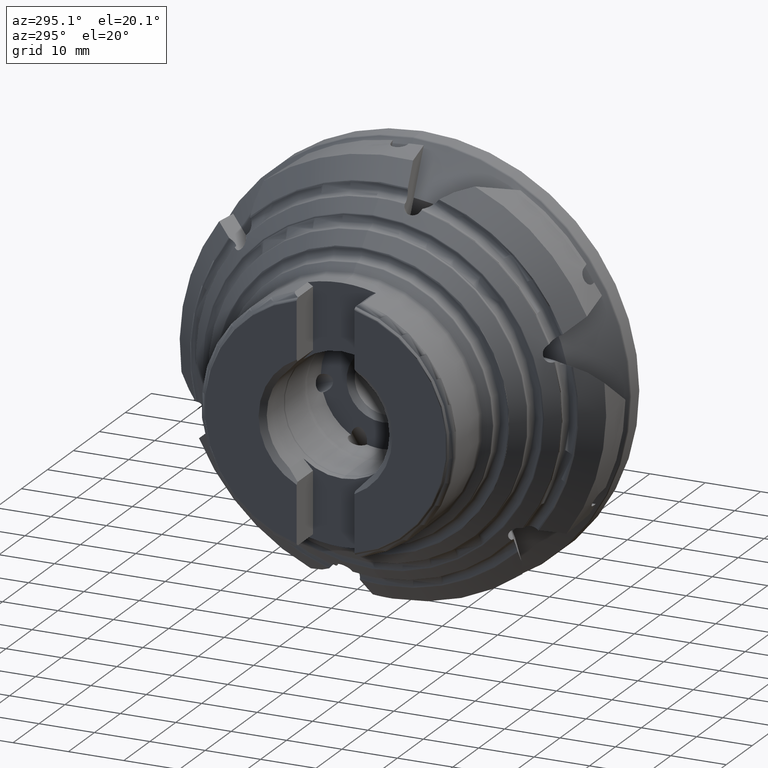
[diagram: clean part render]
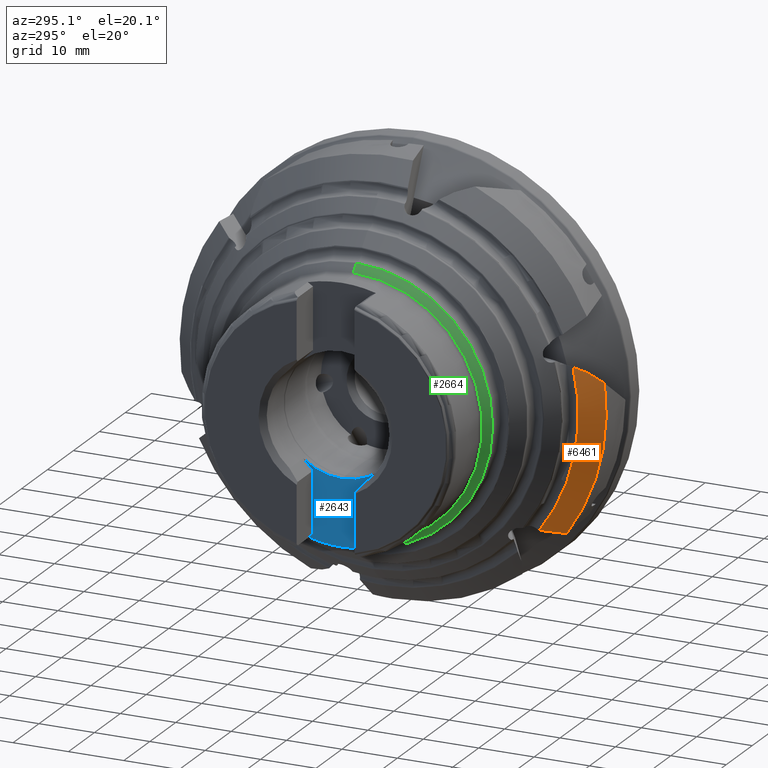
[diagram: same view with three faces highlighted in distinct colors, each labeled with its STEP entity id]
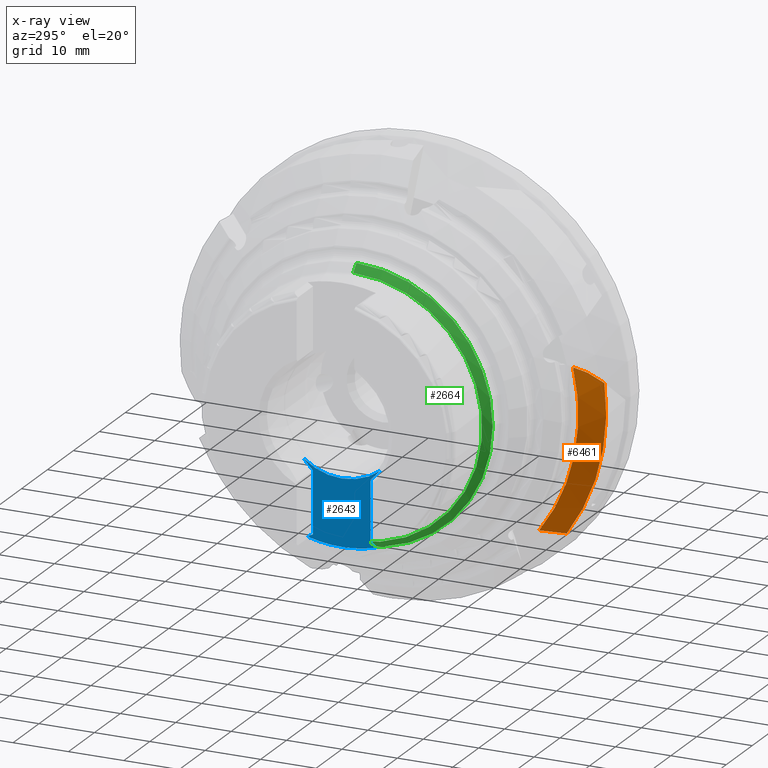
[diagram: x-ray of the same camera — body ghosted, the three highlighted faces saturated]
A machine part, auxiliary view with three faces highlighted in distinct colors.
The next image is the same camera in x-ray (body ghosted, the three faces saturated) — at least one of them is partly hidden behind the body in this view.
Their STEP definitions:

[orange] entity #6461 — the highlighted conical surface has half-angle 44.839 deg.
#941 = CIRCLE ( 'NONE', #6151, 35.08480810806917600 ) ;
#1450 = VERTEX_POINT ( 'NONE', #10338 ) ;
#2008 = CARTESIAN_POINT ( 'NONE',  ( -18.88370790661939600, -36.74331108411361400, 6.315666947041475700 ) ) ;
#2010 = CARTESIAN_POINT ( 'NONE',  ( -18.27245526822867600, -37.46932094015012600, 5.624236103253828400 ) ) ;
#2013 = CARTESIAN_POINT ( 'NONE',  ( -19.48214490789299800, -36.00333230037426100, 7.003244032080381500 ) ) ;
#2015 = CARTESIAN_POINT ( 'NONE',  ( -17.65000000000000600, -38.18312003172305700, 4.929436544173110100 ) ) ;
#2129 = CARTESIAN_POINT ( 'NONE',  ( -21.08445643675847600, 0.0000000000000000000, 0.0000000000000000000 ) ) ;
#2130 = DIRECTION ( 'NONE',  ( 1.000000000000000000, -0.0000000000000000000, -0.0000000000000000000 ) ) ;
#2131 = DIRECTION ( 'NONE',  ( 0.0000000000000000000, 0.0000000000000000000, -1.000000000000000000 ) ) ;
#2503 = EDGE_CURVE ( 'NONE', #10194, #4970, #6762, .T. ) ;
#3401 = AXIS2_PLACEMENT_3D ( 'NONE', #11343, #11344, #11345 ) ;
#3847 = DIRECTION ( 'NONE',  ( 1.000000000000000000, -0.0000000000000000000, -0.0000000000000000000 ) ) ;
#3849 = DIRECTION ( 'NONE',  ( 0.0000000000000000000, 0.0000000000000000000, -1.000000000000000000 ) ) ;
#3852 = CARTESIAN_POINT ( 'NONE',  ( -17.65000000000000600, 0.0000000000000000000, 0.0000000000000000000 ) ) ;
#4035 = ORIENTED_EDGE ( 'NONE', *, *, #5538, .T. ) ;
#4117 = ORIENTED_EDGE ( 'NONE', *, *, #11547, .F. ) ;
#4123 = ORIENTED_EDGE ( 'NONE', *, *, #2503, .F. ) ;
#4125 = ORIENTED_EDGE ( 'NONE', *, *, #11560, .F. ) ;
#4127 = ORIENTED_EDGE ( 'NONE', *, *, #11522, .T. ) ;
#4970 = VERTEX_POINT ( 'NONE', #7928 ) ;
#5080 = EDGE_LOOP ( 'NONE', ( #4117, #4035, #4127, #4125, #4123 ) ) ;
#5117 = VERTEX_POINT ( 'NONE', #7950 ) ;
#5538 = EDGE_CURVE ( 'NONE', #8537, #1450, #941, .T. ) ;
#5611 = CIRCLE ( 'NONE', #3401, 38.50000000000000000 ) ;
#6105 = FACE_OUTER_BOUND ( 'NONE', #5080, .T. ) ;
#6151 = AXIS2_PLACEMENT_3D ( 'NONE', #2129, #2130, #2131 ) ;
#6286 = AXIS2_PLACEMENT_3D ( 'NONE', #3852, #3847, #3849 ) ;
#6461 = ADVANCED_FACE ( 'NONE', ( #6105 ), #9105, .T. ) ;
#6631 = B_SPLINE_CURVE_WITH_KNOTS ( 'NONE', 3,
 ( #11174, #11173, #11203, #11204 ),
 .UNSPECIFIED., .F., .F.,
 ( 4, 4 ),
 ( 2.891632878726865500E-007, 0.004954816912087267600 ),
 .UNSPECIFIED. ) ;
#6679 = B_SPLINE_CURVE_WITH_KNOTS ( 'NONE', 3,
 ( #11280, #11288, #11293, #11294 ),
 .UNSPECIFIED., .F., .F.,
 ( 4, 4 ),
 ( 3.473228054042047800E-007, 0.002753933201108339700 ),
 .UNSPECIFIED. ) ;
#6762 = B_SPLINE_CURVE_WITH_KNOTS ( 'NONE', 3,
 ( #2013, #2008, #2010, #2015 ),
 .UNSPECIFIED., .F., .F.,
 ( 4, 4 ),
 ( 0.003209475135941172600, 0.006731706216230965900 ),
 .UNSPECIFIED. ) ;
#7928 = CARTESIAN_POINT ( 'NONE',  ( -17.65000000000000600, -38.18312003172305700, 4.929436544173110100 ) ) ;
#7950 = CARTESIAN_POINT ( 'NONE',  ( -17.65000000000000600, -31.37579371570396000, -22.31164648136915200 ) ) ;
#8537 = VERTEX_POINT ( 'NONE', #10865 ) ;
#9105 = CONICAL_SURFACE ( 'NONE', #6286, 38.50000000000000000, 0.7825856841125644600 ) ;
#10194 = VERTEX_POINT ( 'NONE', #11066 ) ;
#10338 = CARTESIAN_POINT ( 'NONE',  ( -21.08445643675847900, -28.00396731762104400, -21.13578894798225200 ) ) ;
#10865 = CARTESIAN_POINT ( 'NONE',  ( -21.08445643675847200, -34.11235320580242100, 8.203116404307405000 ) ) ;
#11066 = CARTESIAN_POINT ( 'NONE',  ( -19.48214490789299800, -36.00333230037426100, 7.003244032080381500 ) ) ;
#11173 = CARTESIAN_POINT ( 'NONE',  ( -19.94218869060203800, -29.12990619789849600, -21.52946687132370600 ) ) ;
#11174 = CARTESIAN_POINT ( 'NONE',  ( -21.08445643675847900, -28.00396731762104400, -21.13578894798225200 ) ) ;
#11203 = CARTESIAN_POINT ( 'NONE',  ( -18.79714628752286000, -30.25367332358581900, -21.92126815691487700 ) ) ;
#11204 = CARTESIAN_POINT ( 'NONE',  ( -17.65000000000000600, -31.37579371570396000, -22.31164648136915200 ) ) ;
#11280 = CARTESIAN_POINT ( 'NONE',  ( -21.08445643675847200, -34.11235320580242100, 8.203116404307405000 ) ) ;
#11288 = CARTESIAN_POINT ( 'NONE',  ( -20.55592032117468500, -34.74865356547883300, 7.804959300303541300 ) ) ;
#11293 = CARTESIAN_POINT ( 'NONE',  ( -20.02158436565607900, -35.37873088091990300, 7.404926788098182800 ) ) ;
#11294 = CARTESIAN_POINT ( 'NONE',  ( -19.48214490789299800, -36.00333230037426100, 7.003244032080381500 ) ) ;
#11343 = CARTESIAN_POINT ( 'NONE',  ( -17.65000000000000600, 0.0000000000000000000, 0.0000000000000000000 ) ) ;
#11344 = DIRECTION ( 'NONE',  ( 1.000000000000000000, -0.0000000000000000000, -0.0000000000000000000 ) ) ;
#11345 = DIRECTION ( 'NONE',  ( 0.0000000000000000000, 0.0000000000000000000, -1.000000000000000000 ) ) ;
#11522 = EDGE_CURVE ( 'NONE', #1450, #5117, #6631, .T. ) ;
#11547 = EDGE_CURVE ( 'NONE', #8537, #10194, #6679, .T. ) ;
#11560 = EDGE_CURVE ( 'NONE', #4970, #5117, #5611, .T. ) ;

[blue] entity #2643 — the highlighted planar face has unit normal (1, 0, 0).
#602 = VERTEX_POINT ( 'NONE', #9689 ) ;
#780 = LINE ( 'NONE', #8273, #804 ) ;
#804 = VECTOR ( 'NONE', #8274, 999.9999999999998900 ) ;
#894 = VECTOR ( 'NONE', #5239, 1000.000000000000000 ) ;
#910 = LINE ( 'NONE', #5219, #894 ) ;
#915 = VECTOR ( 'NONE', #2074, 1000.000000000000000 ) ;
#921 = LINE ( 'NONE', #2128, #942 ) ;
#929 = LINE ( 'NONE', #2077, #915 ) ;
#942 = VECTOR ( 'NONE', #2114, 1000.000000000000000 ) ;
#970 = CIRCLE ( 'NONE', #6144, 22.99999999999999600 ) ;
#1010 = FACE_OUTER_BOUND ( 'NONE', #3094, .T. ) ;
#1160 = PLANE ( 'NONE',  #6067 ) ;
#1162 = CARTESIAN_POINT ( 'NONE',  ( -37.35000000000000100, 5.200000000000000200, -29.99999999999999600 ) ) ;
#1163 = DIRECTION ( 'NONE',  ( 1.000000000000000000, 0.0000000000000000000, 0.0000000000000000000 ) ) ;
#1164 = DIRECTION ( 'NONE',  ( 0.0000000000000000000, 0.0000000000000000000, -1.000000000000000000 ) ) ;
#1621 = VERTEX_POINT ( 'NONE', #11677 ) ;
#1639 = VERTEX_POINT ( 'NONE', #10364 ) ;
#1647 = VERTEX_POINT ( 'NONE', #11682 ) ;
#1670 = VERTEX_POINT ( 'NONE', #11690 ) ;
#1714 = VERTEX_POINT ( 'NONE', #11695 ) ;
#1791 = VERTEX_POINT ( 'NONE', #11701 ) ;
#2055 = CARTESIAN_POINT ( 'NONE',  ( -37.35000000000000100, 0.0000000000000000000, 0.0000000000000000000 ) ) ;
#2056 = DIRECTION ( 'NONE',  ( -1.000000000000000000, -0.0000000000000000000, -0.0000000000000000000 ) ) ;
#2057 = DIRECTION ( 'NONE',  ( 0.0000000000000000000, 0.0000000000000000000, -1.000000000000000000 ) ) ;
#2074 = DIRECTION ( 'NONE',  ( -0.0000000000000000000, -0.0000000000000000000, 1.000000000000000000 ) ) ;
#2077 = CARTESIAN_POINT ( 'NONE',  ( -37.35000000000000100, -5.199999999999999300, -29.99999999999999600 ) ) ;
#2114 = DIRECTION ( 'NONE',  ( -0.0000000000000000000, -0.0000000000000000000, 1.000000000000000000 ) ) ;
#2128 = CARTESIAN_POINT ( 'NONE',  ( -37.35000000000000100, 5.200000000000000200, -29.99999999999999600 ) ) ;
#2643 = ADVANCED_FACE ( 'NONE', ( #1010 ), #1160, .F. ) ;
#2926 = ORIENTED_EDGE ( 'NONE', *, *, #7307, .T. ) ;
#2953 = ORIENTED_EDGE ( 'NONE', *, *, #5539, .F. ) ;
#2973 = ORIENTED_EDGE ( 'NONE', *, *, #5582, .F. ) ;
#2975 = ORIENTED_EDGE ( 'NONE', *, *, #7210, .T. ) ;
#3094 = EDGE_LOOP ( 'NONE', ( #8700, #8701, #8702, #8703, #8704, #8705, #2973, #2926, #2953, #2975 ) ) ;
#3440 = AXIS2_PLACEMENT_3D ( 'NONE', #7354, #7355, #7356 ) ;
#3442 = AXIS2_PLACEMENT_3D ( 'NONE', #7425, #7426, #7427 ) ;
#3558 = CIRCLE ( 'NONE', #3442, 11.07499999999999400 ) ;
#3913 = VECTOR ( 'NONE', #4492, 999.9999999999998900 ) ;
#3920 = VECTOR ( 'NONE', #4503, 1000.000000000000000 ) ;
#3947 = LINE ( 'NONE', #4501, #3913 ) ;
#3982 = LINE ( 'NONE', #4508, #3920 ) ;
#4492 = DIRECTION ( 'NONE',  ( 0.0000000000000000000, 0.8486653727368592700, 0.5289301325481540200 ) ) ;
#4501 = CARTESIAN_POINT ( 'NONE',  ( -37.35000000000000100, -1.493107648361166500, -19.26094705590019600 ) ) ;
#4503 = DIRECTION ( 'NONE',  ( -0.0000000000000000000, 0.8486653727368589400, -0.5289301325481545700 ) ) ;
#4508 = CARTESIAN_POINT ( 'NONE',  ( -37.35000000000000100, 8.983529963140132000, -23.92934781204384000 ) ) ;
#5219 = CARTESIAN_POINT ( 'NONE',  ( -37.35000000000000100, 9.352123103702574300, -26.13449538365376800 ) ) ;
#5239 = DIRECTION ( 'NONE',  ( 0.0000000000000000000, -0.6813934887907727700, 0.7319172859234430700 ) ) ;
#5475 = EDGE_CURVE ( 'NONE', #1639, #9876, #910, .T. ) ;
#5521 = EDGE_CURVE ( 'NONE', #9873, #1791, #970, .T. ) ;
#5530 = EDGE_CURVE ( 'NONE', #1647, #1639, #929, .T. ) ;
#5539 = EDGE_CURVE ( 'NONE', #1670, #1621, #921, .T. ) ;
#5582 = EDGE_CURVE ( 'NONE', #1714, #9855, #6000, .T. ) ;
#6000 = CIRCLE ( 'NONE', #6165, 11.07499999999999400 ) ;
#6067 = AXIS2_PLACEMENT_3D ( 'NONE', #1162, #1163, #1164 ) ;
#6144 = AXIS2_PLACEMENT_3D ( 'NONE', #2055, #2056, #2057 ) ;
#6165 = AXIS2_PLACEMENT_3D ( 'NONE', #10495, #10496, #10497 ) ;
#6969 = CIRCLE ( 'NONE', #3440, 22.99999999999999600 ) ;
#7208 = EDGE_CURVE ( 'NONE', #1791, #1647, #3947, .T. ) ;
#7210 = EDGE_CURVE ( 'NONE', #1670, #602, #3982, .T. ) ;
#7307 = EDGE_CURVE ( 'NONE', #1714, #1621, #780, .T. ) ;
#7354 = CARTESIAN_POINT ( 'NONE',  ( -37.35000000000000100, 0.0000000000000000000, 0.0000000000000000000 ) ) ;
#7355 = DIRECTION ( 'NONE',  ( -1.000000000000000000, -0.0000000000000000000, -0.0000000000000000000 ) ) ;
#7356 = DIRECTION ( 'NONE',  ( 0.0000000000000000000, 0.0000000000000000000, -1.000000000000000000 ) ) ;
#7425 = CARTESIAN_POINT ( 'NONE',  ( -37.35000000000000100, 0.0000000000000000000, 0.0000000000000000000 ) ) ;
#7426 = DIRECTION ( 'NONE',  ( -1.000000000000000000, -0.0000000000000000000, -0.0000000000000000000 ) ) ;
#7427 = DIRECTION ( 'NONE',  ( 0.0000000000000000000, 0.0000000000000000000, -1.000000000000000000 ) ) ;
#8273 = CARTESIAN_POINT ( 'NONE',  ( -37.35000000000000100, -4.523433403411379700, -20.94776918485263200 ) ) ;
#8274 = DIRECTION ( 'NONE',  ( -0.0000000000000000000, -0.6813934887907726600, -0.7319172859234431800 ) ) ;
#8700 = ORIENTED_EDGE ( 'NONE', *, *, #11762, .T. ) ;
#8701 = ORIENTED_EDGE ( 'NONE', *, *, #5521, .T. ) ;
#8702 = ORIENTED_EDGE ( 'NONE', *, *, #7208, .T. ) ;
#8703 = ORIENTED_EDGE ( 'NONE', *, *, #5530, .T. ) ;
#8704 = ORIENTED_EDGE ( 'NONE', *, *, #5475, .T. ) ;
#8705 = ORIENTED_EDGE ( 'NONE', *, *, #11784, .F. ) ;
#9689 = CARTESIAN_POINT ( 'NONE',  ( -37.35000000000000100, 6.149081337522141600, -22.16277957983918500 ) ) ;
#9855 = VERTEX_POINT ( 'NONE', #10921 ) ;
#9873 = VERTEX_POINT ( 'NONE', #10938 ) ;
#9876 = VERTEX_POINT ( 'NONE', #10941 ) ;
#10364 = CARTESIAN_POINT ( 'NONE',  ( -37.35000000000000100, -5.199999999999999300, -10.50336502843507700 ) ) ;
#10495 = CARTESIAN_POINT ( 'NONE',  ( -37.35000000000000100, 0.0000000000000000000, 0.0000000000000000000 ) ) ;
#10496 = DIRECTION ( 'NONE',  ( -1.000000000000000000, -0.0000000000000000000, -0.0000000000000000000 ) ) ;
#10497 = DIRECTION ( 'NONE',  ( 0.0000000000000000000, 2.664535259100376100E-015, -1.000000000000000000 ) ) ;
#10921 = CARTESIAN_POINT ( 'NONE',  ( -37.35000000000000100, 0.0000000000000000000, -11.07499999999999400 ) ) ;
#10938 = CARTESIAN_POINT ( 'NONE',  ( -37.35000000000000100, 0.0000000000000000000, -22.99999999999999600 ) ) ;
#10941 = CARTESIAN_POINT ( 'NONE',  ( -37.35000000000000100, -6.952914283410225800, -8.620476087058646500 ) ) ;
#11677 = CARTESIAN_POINT ( 'NONE',  ( -37.35000000000000100, 5.200000000000000200, -10.50336502843507700 ) ) ;
#11682 = CARTESIAN_POINT ( 'NONE',  ( -37.35000000000000100, -5.199999999999999300, -21.57126526361856700 ) ) ;
#11690 = CARTESIAN_POINT ( 'NONE',  ( -37.35000000000000100, 5.200000000000000200, -21.57126526361855700 ) ) ;
#11695 = CARTESIAN_POINT ( 'NONE',  ( -37.35000000000000100, 6.952914283410240000, -8.620476087058635900 ) ) ;
#11701 = CARTESIAN_POINT ( 'NONE',  ( -37.35000000000000100, -6.149081337522131800, -22.16277957983918900 ) ) ;
#11762 = EDGE_CURVE ( 'NONE', #602, #9873, #6969, .T. ) ;
#11784 = EDGE_CURVE ( 'NONE', #9855, #9876, #3558, .T. ) ;

[green] entity #2664 — the highlighted conical surface has half-angle 44.839 deg.
#562 = ORIENTED_EDGE ( 'NONE', *, *, #5488, .F. ) ;
#570 = ORIENTED_EDGE ( 'NONE', *, *, #11837, .T. ) ;
#571 = ORIENTED_EDGE ( 'NONE', *, *, #11800, .T. ) ;
#572 = ORIENTED_EDGE ( 'NONE', *, *, #11796, .F. ) ;
#924 = CONICAL_SURFACE ( 'NONE', #6109, 24.56164089957395200, 0.7825856841125635700 ) ;
#931 = FACE_OUTER_BOUND ( 'NONE', #8551, .T. ) ;
#986 = CIRCLE ( 'NONE', #6136, 24.56164089957395200 ) ;
#1227 = DIRECTION ( 'NONE',  ( 1.000000000000000000, -0.0000000000000000000, -0.0000000000000000000 ) ) ;
#1229 = DIRECTION ( 'NONE',  ( 0.0000000000000000000, 0.0000000000000000000, -1.000000000000000000 ) ) ;
#1232 = CARTESIAN_POINT ( 'NONE',  ( -31.66698312865370100, 0.0000000000000000000, 0.0000000000000000000 ) ) ;
#2664 = ADVANCED_FACE ( 'NONE', ( #931 ), #924, .T. ) ;
#3446 = AXIS2_PLACEMENT_3D ( 'NONE', #7469, #7470, #7471 ) ;
#3582 = CIRCLE ( 'NONE', #3446, 23.29090729488048700 ) ;
#3589 = VECTOR ( 'NONE', #7449, 1000.000000000000000 ) ;
#3591 = LINE ( 'NONE', #7448, #3589 ) ;
#5305 = CARTESIAN_POINT ( 'NONE',  ( -31.66698312865370100, 0.0000000000000000000, 0.0000000000000000000 ) ) ;
#5306 = DIRECTION ( 'NONE',  ( 1.000000000000000000, -0.0000000000000000000, -0.0000000000000000000 ) ) ;
#5307 = DIRECTION ( 'NONE',  ( 0.0000000000000000000, 0.0000000000000000000, -1.000000000000000000 ) ) ;
#5488 = EDGE_CURVE ( 'NONE', #10050, #10049, #986, .T. ) ;
#6109 = AXIS2_PLACEMENT_3D ( 'NONE', #1232, #1227, #1229 ) ;
#6136 = AXIS2_PLACEMENT_3D ( 'NONE', #5305, #5306, #5307 ) ;
#7448 = CARTESIAN_POINT ( 'NONE',  ( -31.66698312865370100, 3.007933490946995700E-015, 24.56164089957395200 ) ) ;
#7449 = DIRECTION ( 'NONE',  ( 0.7090927051195019500, 8.635171511053581800E-017, 0.7051152640145489400 ) ) ;
#7469 = CARTESIAN_POINT ( 'NONE',  ( -32.94488473598545400, 0.0000000000000000000, 0.0000000000000000000 ) ) ;
#7470 = DIRECTION ( 'NONE',  ( 1.000000000000000000, -0.0000000000000000000, -0.0000000000000000000 ) ) ;
#7471 = DIRECTION ( 'NONE',  ( 0.0000000000000000000, 0.0000000000000000000, -1.000000000000000000 ) ) ;
#7567 = CARTESIAN_POINT ( 'NONE',  ( -31.66698312865370100, 0.0000000000000000000, -24.56164089957395200 ) ) ;
#7568 = DIRECTION ( 'NONE',  ( 0.7090927051195019500, 0.0000000000000000000, -0.7051152640145489400 ) ) ;
#8366 = LINE ( 'NONE', #7567, #8394 ) ;
#8394 = VECTOR ( 'NONE', #7568, 1000.000000000000000 ) ;
#8551 = EDGE_LOOP ( 'NONE', ( #572, #571, #570, #562 ) ) ;
#10043 = VERTEX_POINT ( 'NONE', #11031 ) ;
#10046 = VERTEX_POINT ( 'NONE', #11035 ) ;
#10049 = VERTEX_POINT ( 'NONE', #11028 ) ;
#10050 = VERTEX_POINT ( 'NONE', #11038 ) ;
#11028 = CARTESIAN_POINT ( 'NONE',  ( -31.66698312865370100, 0.0000000000000000000, -24.56164089957395200 ) ) ;
#11031 = CARTESIAN_POINT ( 'NONE',  ( -32.94488473598545400, 0.0000000000000000000, -23.29090729488048700 ) ) ;
#11035 = CARTESIAN_POINT ( 'NONE',  ( -32.94488473598545400, 2.930123498869154200E-015, 23.29090729488048700 ) ) ;
#11038 = CARTESIAN_POINT ( 'NONE',  ( -31.66698312865370100, 3.013026720355649000E-015, 24.56164089957395200 ) ) ;
#11796 = EDGE_CURVE ( 'NONE', #10046, #10050, #3591, .T. ) ;
#11800 = EDGE_CURVE ( 'NONE', #10046, #10043, #3582, .T. ) ;
#11837 = EDGE_CURVE ( 'NONE', #10043, #10049, #8366, .T. ) ;